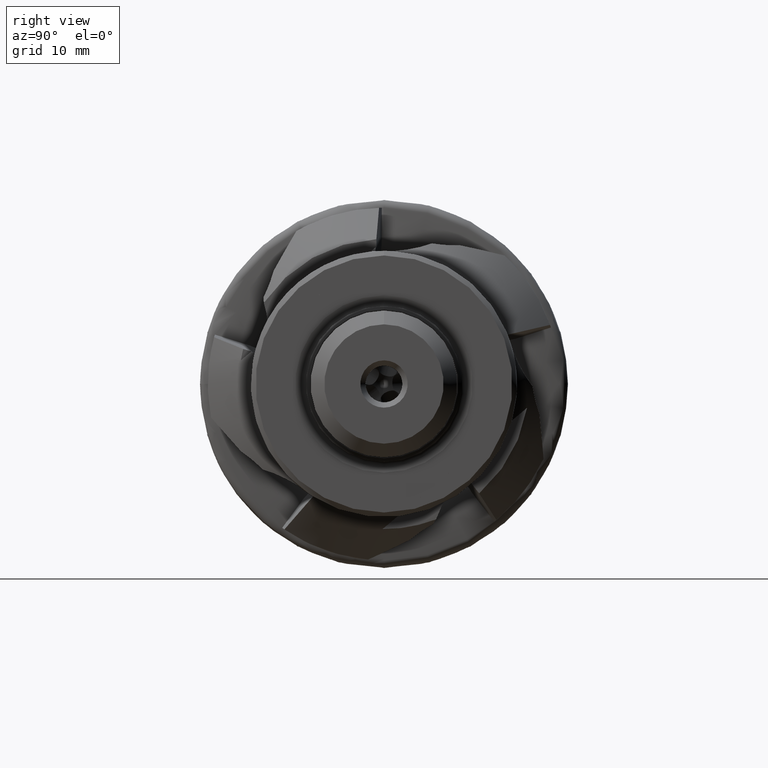
[diagram: clean part render]
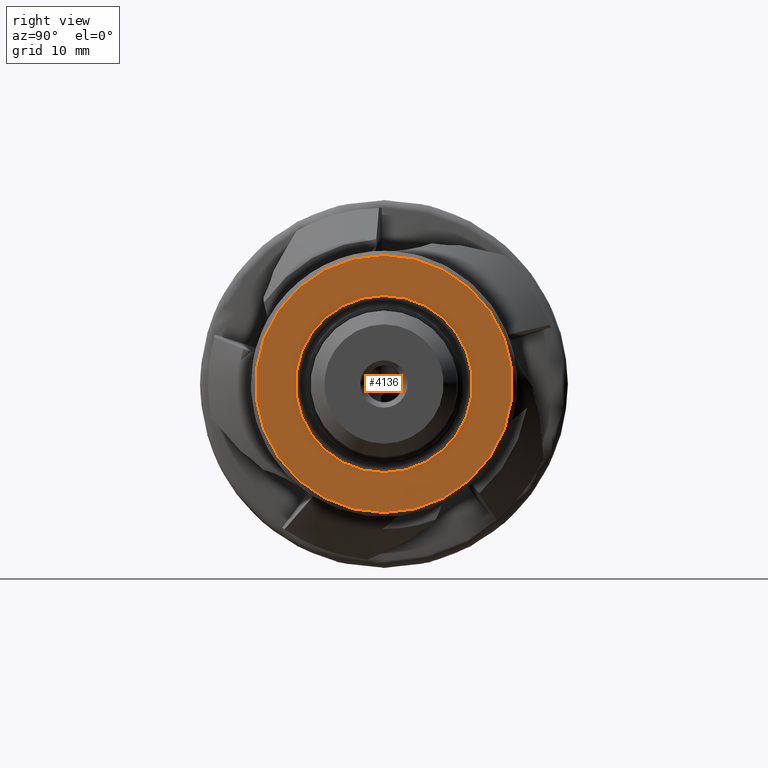
[diagram: same view with one face highlighted and labeled with its STEP entity id]
A machine part, right view. The second image highlights one B-rep face of the part: STEP entity #4136.
In plain terms, the highlighted planar face has unit normal (-1, 0, -0).
Its self-contained STEP definition (entity closure, byte-faithful):
#252 = DIRECTION ( 'NONE',  ( -1.000000000000000000, -0.0000000000000000000, -0.0000000000000000000 ) ) ;
#880 = CIRCLE ( 'NONE', #1312, 9.653493059404514300 ) ;
#1273 = CARTESIAN_POINT ( 'NONE',  ( 30.89999999999999900, 0.0000000000000000000, 0.0000000000000000000 ) ) ;
#1286 = AXIS2_PLACEMENT_3D ( 'NONE', #1273, #3770, #1632 ) ;
#1312 = AXIS2_PLACEMENT_3D ( 'NONE', #2362, #252, #2721 ) ;
#1412 = VERTEX_POINT ( 'NONE', #1844 ) ;
#1632 = DIRECTION ( 'NONE',  ( 0.0000000000000000000, 0.0000000000000000000, 1.000000000000000000 ) ) ;
#1844 = CARTESIAN_POINT ( 'NONE',  ( 30.89999999999999900, 0.0000000000000000000, 9.653493059404514300 ) ) ;
#1850 = DIRECTION ( 'NONE',  ( -0.0000000000000000000, 0.0000000000000000000, 1.000000000000000000 ) ) ;
#1952 = EDGE_LOOP ( 'NONE', ( #2464 ) ) ;
#2117 = EDGE_LOOP ( 'NONE', ( #2532 ) ) ;
#2362 = CARTESIAN_POINT ( 'NONE',  ( 30.89999999999999900, 0.0000000000000000000, 0.0000000000000000000 ) ) ;
#2464 = ORIENTED_EDGE ( 'NONE', *, *, #3538, .T. ) ;
#2532 = ORIENTED_EDGE ( 'NONE', *, *, #4372, .F. ) ;
#2560 = CARTESIAN_POINT ( 'NONE',  ( 30.89999999999999900, 0.0000000000000000000, 14.00000000000000000 ) ) ;
#2721 = DIRECTION ( 'NONE',  ( 0.0000000000000000000, 0.0000000000000000000, 1.000000000000000000 ) ) ;
#2789 = AXIS2_PLACEMENT_3D ( 'NONE', #3629, #4000, #1850 ) ;
#2963 = FACE_BOUND ( 'NONE', #1952, .T. ) ;
#3267 = PLANE ( 'NONE',  #2789 ) ;
#3409 = CIRCLE ( 'NONE', #1286, 14.00000000000000000 ) ;
#3538 = EDGE_CURVE ( 'NONE', #1412, #1412, #880, .T. ) ;
#3629 = CARTESIAN_POINT ( 'NONE',  ( 30.89999999999999900, 9.653493059404514300, 0.0000000000000000000 ) ) ;
#3770 = DIRECTION ( 'NONE',  ( -1.000000000000000000, -0.0000000000000000000, -0.0000000000000000000 ) ) ;
#4000 = DIRECTION ( 'NONE',  ( -1.000000000000000000, 0.0000000000000000000, -0.0000000000000000000 ) ) ;
#4136 = ADVANCED_FACE ( 'NONE', ( #4537, #2963 ), #3267, .F. ) ;
#4370 = VERTEX_POINT ( 'NONE', #2560 ) ;
#4372 = EDGE_CURVE ( 'NONE', #4370, #4370, #3409, .T. ) ;
#4537 = FACE_OUTER_BOUND ( 'NONE', #2117, .T. ) ;